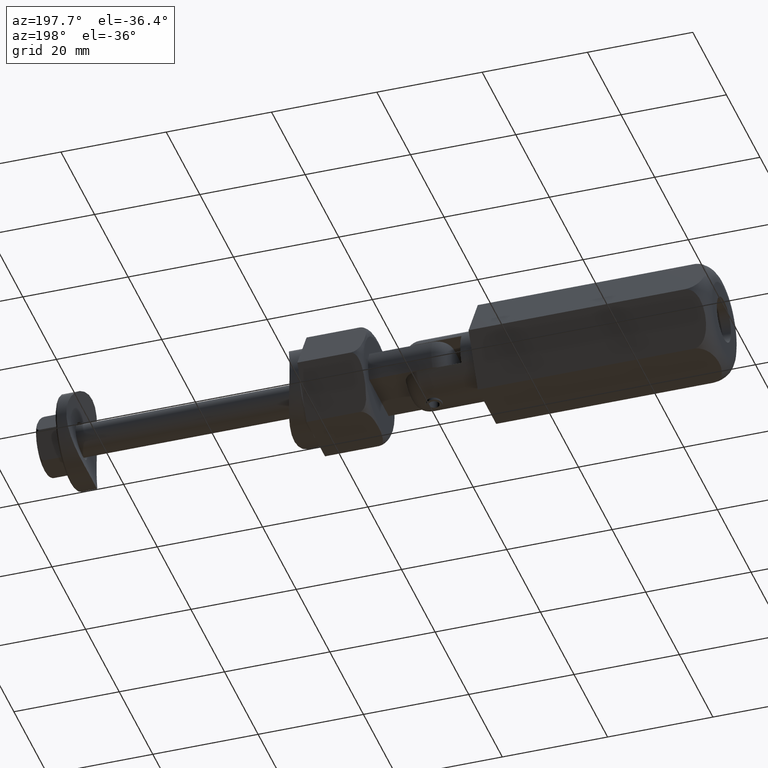
[diagram: clean part render]
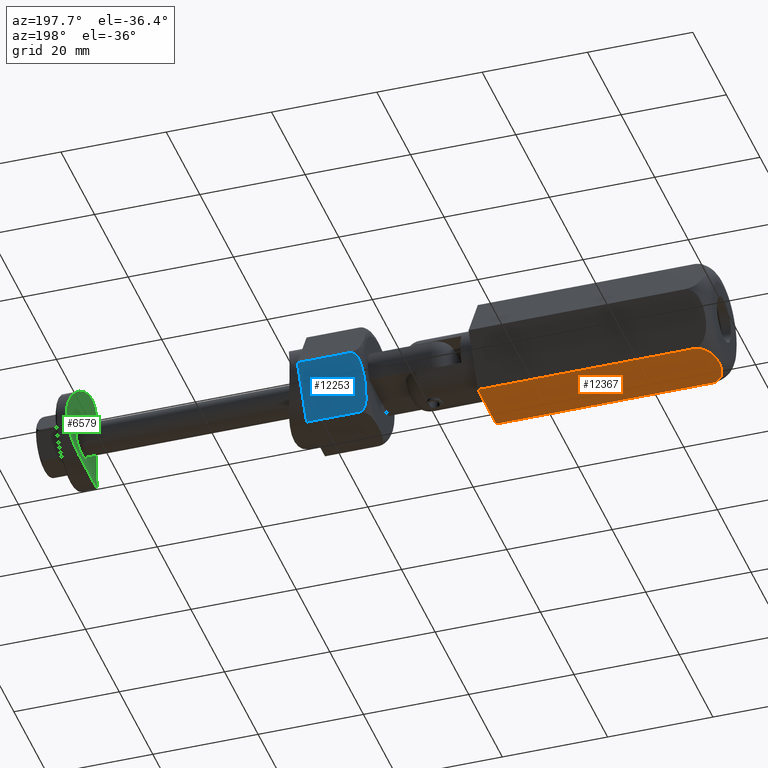
[diagram: same view with three faces highlighted in distinct colors, each labeled with its STEP entity id]
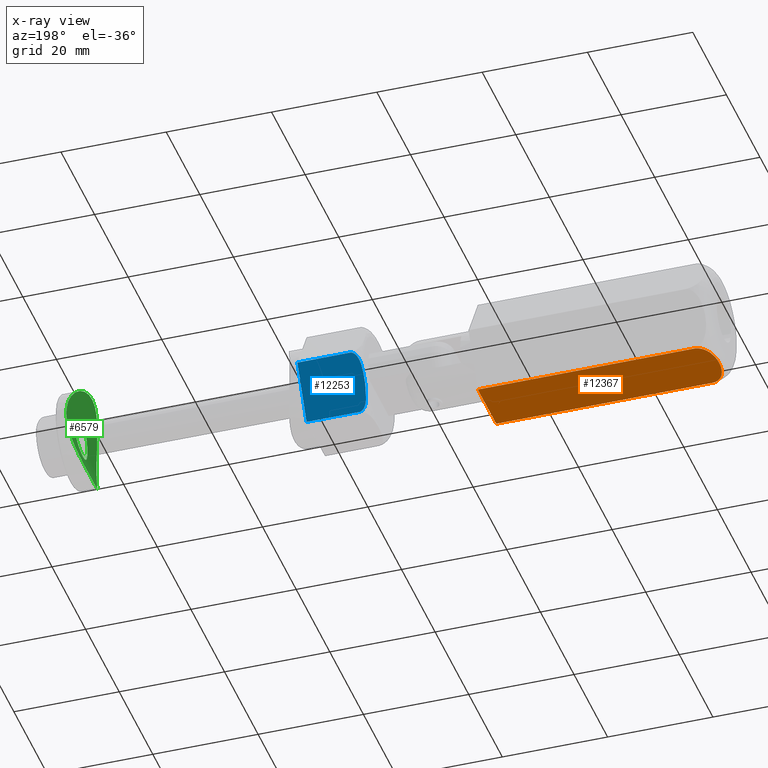
[diagram: x-ray of the same camera — body ghosted, the three highlighted faces saturated]
A machine part, auxiliary view with three faces highlighted in distinct colors.
The next image is the same camera in x-ray (body ghosted, the three faces saturated) — at least one of them is partly hidden behind the body in this view.
Their STEP definitions:

[orange] entity #12367 — the highlighted planar face has unit normal (-0, 0, 1).
#115 = CARTESIAN_POINT ( 'NONE',  ( -7.446822779551734328, 6.670229978221253297, 43.62148147512581886 ) ) ;
#181 = B_SPLINE_CURVE_WITH_KNOTS ( 'NONE', 3,
 ( #8402, #4118, #1488, #17402, #7370, #3016, #14557, #1552, #8758, #16081, #1608, #115, #4304, #10044, #4537, #7208, #13112, #14373, #17278, #10227, #4415, #17457, #7318, #2962, #11483, #10106, #11659, #4471, #12924, #1368, #13166, #2898, #3078, #12988, #14615, #5989 ),
 .UNSPECIFIED., .F., .F.,
 ( 4, 2, 2, 2, 2, 2, 2, 2, 2, 2, 2, 2, 2, 2, 2, 2, 2, 4 ),
 ( 1.970171766495558710E-07, 0.0004336534328667719304, 0.0008671098485568943691, 0.001734022679937157569, 0.002600935511317420661, 0.003467848342697683970, 0.004334761174077946845, 0.005201674005458210154, 0.006935499668218738506, 0.008669325330979266858, 0.009536238162359531034, 0.01040315099373979521, 0.01127006382512006112, 0.01213697665650032703, 0.01257043307219046432, 0.01300388948788060509, 0.01343734590357074238, 0.01387080231926088314 ),
 .UNSPECIFIED. ) ;
#623 = VERTEX_POINT ( 'NONE', #9250 ) ;
#921 = ORIENTED_EDGE ( 'NONE', *, *, #2014, .T. ) ;
#1368 = CARTESIAN_POINT ( 'NONE',  ( -0.2711886533605979976, 10.81308427258397131, 42.10434891476233332 ) ) ;
#1488 = CARTESIAN_POINT ( 'NONE',  ( -9.486123204479945059, 5.492839328930437581, 41.29054539716901218 ) ) ;
#1552 = CARTESIAN_POINT ( 'NONE',  ( -8.749598401841790718, 5.918072121998408264, 42.77482519484067325 ) ) ;
#1608 = CARTESIAN_POINT ( 'NONE',  ( -7.907273331264584648, 6.404388728241327655, 43.40048957431875465 ) ) ;
#2014 = EDGE_CURVE ( 'NONE', #5413, #623, #16359, .T. ) ;
#2898 = CARTESIAN_POINT ( 'NONE',  ( -0.1074483461378910043, 10.90761978303619273, 41.71254742186170716 ) ) ;
#2962 = CARTESIAN_POINT ( 'NONE',  ( -1.593998663515251213, 10.04935955713445139, 43.40131334444888722 ) ) ;
#3016 = CARTESIAN_POINT ( 'NONE',  ( -9.239183155067706821, 5.635410232932287045, 42.11147553663364107 ) ) ;
#3078 = CARTESIAN_POINT ( 'NONE',  ( -0.06728216614628501624, 10.93080973786666377, 41.57272147207822854 ) ) ;
#4118 = CARTESIAN_POINT ( 'NONE',  ( -9.500000000000001776, 5.484827557301439782, 41.14667168911100958 ) ) ;
#4304 = CARTESIAN_POINT ( 'NONE',  ( -7.207038754022406124, 6.808669349907987112, 43.71285843032678287 ) ) ;
#4415 = CARTESIAN_POINT ( 'NONE',  ( -2.778568392603388837, 9.365447905171532028, 43.86274081669363056 ) ) ;
#4471 = CARTESIAN_POINT ( 'NONE',  ( -0.4928356627262582834, 10.68511631206163059, 42.45831529050607145 ) ) ;
#4537 = CARTESIAN_POINT ( 'NONE',  ( -6.480862717753538504, 7.227927279926873005, 43.92029236874594034 ) ) ;
#5413 = VERTEX_POINT ( 'NONE', #18052 ) ;
#5989 = CARTESIAN_POINT ( 'NONE',  ( 1.214306433183764966E-14, 10.96965511460288845, 40.99999999999999289 ) ) ;
#6209 = CARTESIAN_POINT ( 'NONE',  ( 5.223376670782212282E-15, 10.96965511460288845, 45.00000000000000000 ) ) ;
#6242 = LINE ( 'NONE', #18170, #17288 ) ;
#7208 = CARTESIAN_POINT ( 'NONE',  ( -5.746149253409090996, 7.652114296343381028, 44.05675738102539896 ) ) ;
#7318 = CARTESIAN_POINT ( 'NONE',  ( -2.058143797317456336, 9.781385239190695913, 43.62364900213911056 ) ) ;
#7370 = CARTESIAN_POINT ( 'NONE',  ( -9.392357395636430795, 5.546975043907021785, 41.71312555923451981 ) ) ;
#7492 = EDGE_CURVE ( 'NONE', #10354, #5413, #181, .T. ) ;
#7587 = VECTOR ( 'NONE', #9453, 1000.000000000000000 ) ;
#7946 = ORIENTED_EDGE ( 'NONE', *, *, #9465, .T. ) ;
#8402 = CARTESIAN_POINT ( 'NONE',  ( -9.499999999999996447, 5.484827557301445999, 40.99999999999999289 ) ) ;
#8758 = CARTESIAN_POINT ( 'NONE',  ( -8.551860364337809273, 6.032236231180360342, 42.95737215773482376 ) ) ;
#9250 = CARTESIAN_POINT ( 'NONE',  ( 5.223376670782212282E-15, 10.96965511460288845, 0.000000000000000000 ) ) ;
#9453 = DIRECTION ( 'NONE',  ( -0.8660254037844387076, -0.4999999999999999445, 0.000000000000000000 ) ) ;
#9465 = EDGE_CURVE ( 'NONE', #623, #15293, #12113, .T. ) ;
#9812 = EDGE_CURVE ( 'NONE', #10354, #15293, #6242, .T. ) ;
#10044 = CARTESIAN_POINT ( 'NONE',  ( -6.724234168576175286, 7.087416707281349204, 43.86206037955516024 ) ) ;
#10064 = DIRECTION ( 'NONE',  ( 0.4999999999999999445, -0.8660254037844387076, 0.000000000000000000 ) ) ;
#10106 = CARTESIAN_POINT ( 'NONE',  ( -0.9454844053752656796, 10.42377943864488365, 42.95521106891156649 ) ) ;
#10185 = CARTESIAN_POINT ( 'NONE',  ( 5.223376670782212282E-15, 10.96965511460288845, 45.00000000000000000 ) ) ;
#10227 = CARTESIAN_POINT ( 'NONE',  ( -3.021065120984054442, 9.225442353763350312, 43.92069474690411823 ) ) ;
#10354 = VERTEX_POINT ( 'NONE', #15189 ) ;
#11483 = CARTESIAN_POINT ( 'NONE',  ( -1.369769228094275704, 10.17881848203499118, 43.27037286388834758 ) ) ;
#11659 = CARTESIAN_POINT ( 'NONE',  ( -0.7504398242444135780, 10.53638848006475826, 42.77497964306935785 ) ) ;
#11771 = CARTESIAN_POINT ( 'NONE',  ( -9.500000000000000000, 5.484827557301441558, 0.000000000000000000 ) ) ;
#12013 = DIRECTION ( 'NONE',  ( -0.000000000000000000, -0.000000000000000000, -1.000000000000000000 ) ) ;
#12113 = LINE ( 'NONE', #14989, #7587 ) ;
#12314 = VECTOR ( 'NONE', #12013, 1000.000000000000000 ) ;
#12367 = ADVANCED_FACE ( 'NONE', ( #17257 ), #17357, .F. ) ;
#12437 = DIRECTION ( 'NONE',  ( -0.000000000000000000, -0.000000000000000000, -1.000000000000000000 ) ) ;
#12924 = CARTESIAN_POINT ( 'NONE',  ( -0.4124664863858385488, 10.73151747765632003, 42.34401321087241143 ) ) ;
#12941 = DIRECTION ( 'NONE',  ( 0.8660254037844385966, 0.4999999999999998890, 0.000000000000000000 ) ) ;
#12988 = CARTESIAN_POINT ( 'NONE',  ( -0.01389265024196212860, 10.96163418924593103, 41.29056907888804062 ) ) ;
#13112 = CARTESIAN_POINT ( 'NONE',  ( -5.250349426452450174, 7.938364459900964398, 44.09798277058472848 ) ) ;
#13166 = CARTESIAN_POINT ( 'NONE',  ( -0.2096293518114090426, 10.84862555190452227, 41.97842836769322616 ) ) ;
#14373 = CARTESIAN_POINT ( 'NONE',  ( -4.248849028183879994, 8.516580984434845902, 44.09793675888082731 ) ) ;
#14557 = CARTESIAN_POINT ( 'NONE',  ( -9.092082142897089270, 5.720339041907063660, 42.35403578762996801 ) ) ;
#14615 = CARTESIAN_POINT ( 'NONE',  ( 8.261394678886944744E-15, 10.96965511460289200, 41.14676478437783658 ) ) ;
#14989 = CARTESIAN_POINT ( 'NONE',  ( 5.223376670782212282E-15, 10.96965511460288845, 0.000000000000000000 ) ) ;
#15189 = CARTESIAN_POINT ( 'NONE',  ( -9.499999999999996447, 5.484827557301445999, 40.99999999999999289 ) ) ;
#15293 = VERTEX_POINT ( 'NONE', #11771 ) ;
#15666 = AXIS2_PLACEMENT_3D ( 'NONE', #10185, #10064, #12941 ) ;
#16081 = CARTESIAN_POINT ( 'NONE',  ( -8.129533130639849503, 6.276066973241989366, 43.27070080692345755 ) ) ;
#16359 = LINE ( 'NONE', #6209, #12314 ) ;
#17257 = FACE_OUTER_BOUND ( 'NONE', #18599, .T. ) ;
#17278 = CARTESIAN_POINT ( 'NONE',  ( -3.753710454555559295, 8.802449373205321947, 44.05664237914577086 ) ) ;
#17288 = VECTOR ( 'NONE', #12437, 1000.000000000000000 ) ;
#17357 = PLANE ( 'NONE',  #15666 ) ;
#17402 = CARTESIAN_POINT ( 'NONE',  ( -9.432634108725251210, 5.523721272763115309, 41.57310375832806670 ) ) ;
#17457 = CARTESIAN_POINT ( 'NONE',  ( -2.297959558659874890, 9.642927544823729491, 43.71458572105388640 ) ) ;
#18052 = CARTESIAN_POINT ( 'NONE',  ( 1.214306433183764966E-14, 10.96965511460288845, 40.99999999999999289 ) ) ;
#18170 = CARTESIAN_POINT ( 'NONE',  ( -9.500000000000000000, 5.484827557301441558, 45.00000000000000000 ) ) ;
#18388 = ORIENTED_EDGE ( 'NONE', *, *, #7492, .T. ) ;
#18563 = ORIENTED_EDGE ( 'NONE', *, *, #9812, .F. ) ;
#18599 = EDGE_LOOP ( 'NONE', ( #18563, #18388, #921, #7946 ) ) ;

[blue] entity #12253 — the highlighted planar face has unit normal (-0, -0.866, 0.5).
#212 = EDGE_LOOP ( 'NONE', ( #621, #13947, #1211, #15361 ) ) ;
#293 = VERTEX_POINT ( 'NONE', #8743 ) ;
#621 = ORIENTED_EDGE ( 'NONE', *, *, #5821, .F. ) ;
#646 = VERTEX_POINT ( 'NONE', #3509 ) ;
#658 = PLANE ( 'NONE',  #12754 ) ;
#811 = CARTESIAN_POINT ( 'NONE',  ( -3.768767219689602571E-14, 10.96965511460289555, 10.13372363806145593 ) ) ;
#1211 = ORIENTED_EDGE ( 'NONE', *, *, #9696, .T. ) ;
#1382 = CARTESIAN_POINT ( 'NONE',  ( 3.520521459468488000E-15, 10.96965511460291509, 0.000000000000000000 ) ) ;
#2264 = CARTESIAN_POINT ( 'NONE',  ( -9.119513844951647741, 5.704501341341577714, 10.92654201973942030 ) ) ;
#2324 = CARTESIAN_POINT ( 'NONE',  ( -6.563988900393466608, 7.179934356003041529, 11.85829195902210209 ) ) ;
#2447 = CARTESIAN_POINT ( 'NONE',  ( -7.680642201204814334, 6.535234272188128024, 11.66489135380609632 ) ) ;
#2681 = LINE ( 'NONE', #13780, #7213 ) ;
#3509 = CARTESIAN_POINT ( 'NONE',  ( -9.499999999999998224, 5.484827557301456658, 0.000000000000000000 ) ) ;
#3851 = CARTESIAN_POINT ( 'NONE',  ( -1.181243662208773637, 10.28766376824813911, 11.45004439842704791 ) ) ;
#3911 = CARTESIAN_POINT ( 'NONE',  ( -0.1086672379174257741, 10.90691605553919530, 10.51096866074480118 ) ) ;
#3978 = CARTESIAN_POINT ( 'NONE',  ( -5.660899274052090036, 7.701333394873594251, 11.91782240567438578 ) ) ;
#5255 = CARTESIAN_POINT ( 'NONE',  ( 7.806255641895616148E-15, 10.96965511460291509, 10.00000000000000178 ) ) ;
#5374 = CARTESIAN_POINT ( 'NONE',  ( -0.02330133180894536707, 10.95620208441054366, 10.26401890429809427 ) ) ;
#5395 = EDGE_CURVE ( 'NONE', #293, #646, #11712, .T. ) ;
#5444 = CARTESIAN_POINT ( 'NONE',  ( -4.303590513517807636, 8.484975973141496652, 11.92850409199469297 ) ) ;
#5821 = EDGE_CURVE ( 'NONE', #7938, #293, #9874, .T. ) ;
#6179 = EDGE_CURVE ( 'NONE', #7938, #15768, #2681, .T. ) ;
#6636 = CARTESIAN_POINT ( 'NONE',  ( -8.936578034186766217, 5.810119380931103805, 11.08564774292463184 ) ) ;
#6699 = CARTESIAN_POINT ( 'NONE',  ( -0.5732801973703969267, 10.63867163833003282, 11.09352661582058808 ) ) ;
#6762 = CARTESIAN_POINT ( 'NONE',  ( -0.9690206753403729500, 10.41019076684484013, 11.35117518770045564 ) ) ;
#6892 = CARTESIAN_POINT ( 'NONE',  ( -9.334117897262814267, 5.580599633970543927, 10.61818887033518166 ) ) ;
#7213 = VECTOR ( 'NONE', #14126, 1000.000000000000000 ) ;
#7938 = VERTEX_POINT ( 'NONE', #8554 ) ;
#8260 = CARTESIAN_POINT ( 'NONE',  ( -9.477500402085613729, 5.497817706214017441, 10.26022967669228514 ) ) ;
#8271 = LINE ( 'NONE', #9077, #9161 ) ;
#8554 = CARTESIAN_POINT ( 'NONE',  ( 7.806255641895616148E-15, 10.96965511460291509, 10.00000000000000178 ) ) ;
#8743 = CARTESIAN_POINT ( 'NONE',  ( -9.499999999999998224, 5.484827557301462875, 10.00000000000000178 ) ) ;
#9077 = CARTESIAN_POINT ( 'NONE',  ( 3.520521459468488000E-15, 10.96965511460291509, 0.000000000000000000 ) ) ;
#9161 = VECTOR ( 'NONE', #16215, 1000.000000000000114 ) ;
#9211 = DIRECTION ( 'NONE',  ( 2.747217888871383579E-32, 1.690114475855316345E-48, -1.000000000000000000 ) ) ;
#9529 = CARTESIAN_POINT ( 'NONE',  ( -9.499999999999966249, 5.484827557301507284, 10.13272897949966200 ) ) ;
#9649 = CARTESIAN_POINT ( 'NONE',  ( -2.948357487886927863, 9.267420125304152378, 11.85946668466851861 ) ) ;
#9696 = EDGE_CURVE ( 'NONE', #15768, #646, #8271, .T. ) ;
#9874 = B_SPLINE_CURVE_WITH_KNOTS ( 'NONE', 3,
 ( #5255, #811, #5374, #3911, #10927, #18288, #6699, #6762, #3851, #15324, #13805, #15455, #9649, #18220, #5444, #15258, #3978, #2324, #12608, #2447, #10987, #11179, #16892, #6636, #2264, #6892, #18162, #8260, #9529, #12429 ),
 .UNSPECIFIED., .F., .F.,
 ( 4, 2, 2, 2, 2, 2, 2, 2, 2, 2, 2, 2, 2, 2, 4 ),
 ( 1.969591725494962651E-07, 0.0003952753807345900676, 0.0007903538022966306474, 0.001580510645420716252, 0.002370667488544801749, 0.003160824331668886811, 0.004741138017917054769, 0.006321451704165223159, 0.007901765390413390683, 0.009482079076661558206, 0.01027223591978564284, 0.01106239276290972746, 0.01185254960603381036, 0.01224762802759585094, 0.01264270644915789325 ),
 .UNSPECIFIED. ) ;
#10261 = FACE_OUTER_BOUND ( 'NONE', #212, .T. ) ;
#10383 = CARTESIAN_POINT ( 'NONE',  ( 3.520521459468488000E-15, 10.96965511460291509, 12.00000000000000355 ) ) ;
#10835 = DIRECTION ( 'NONE',  ( 0.5000000000000012212, -0.8660254037844379305, -5.392603844284237125E-33 ) ) ;
#10927 = CARTESIAN_POINT ( 'NONE',  ( -0.1697574696399652971, 10.87164559380932971, 10.62487409099793823 ) ) ;
#10987 = CARTESIAN_POINT ( 'NONE',  ( -7.899681610115841579, 6.408771810490208942, 11.60465455900878951 ) ) ;
#11179 = CARTESIAN_POINT ( 'NONE',  ( -8.330015488606980156, 6.160318429901934678, 11.44500298372937586 ) ) ;
#11712 = LINE ( 'NONE', #13489, #15353 ) ;
#12253 = ADVANCED_FACE ( 'NONE', ( #10261 ), #658, .F. ) ;
#12429 = CARTESIAN_POINT ( 'NONE',  ( -9.499999999999998224, 5.484827557301462875, 10.00000000000000178 ) ) ;
#12608 = CARTESIAN_POINT ( 'NONE',  ( -7.016375749902080017, 6.918748686661400527, 11.80944225031882056 ) ) ;
#12754 = AXIS2_PLACEMENT_3D ( 'NONE', #10383, #10835, #15038 ) ;
#13489 = CARTESIAN_POINT ( 'NONE',  ( -9.499999999999998224, 5.484827557301462875, 12.00000000000001066 ) ) ;
#13780 = CARTESIAN_POINT ( 'NONE',  ( 3.520521459468488000E-15, 10.96965511460291509, 12.00000000000000355 ) ) ;
#13805 = CARTESIAN_POINT ( 'NONE',  ( -1.835532337952674675, 9.909910025179675230, 11.66901284663642890 ) ) ;
#13947 = ORIENTED_EDGE ( 'NONE', *, *, #6179, .T. ) ;
#14126 = DIRECTION ( 'NONE',  ( 2.747217888871383579E-32, 1.690114475855316345E-48, -1.000000000000000000 ) ) ;
#15038 = DIRECTION ( 'NONE',  ( 0.8660254037844379305, 0.5000000000000012212, 2.985687800686721840E-33 ) ) ;
#15258 = CARTESIAN_POINT ( 'NONE',  ( -5.208180796922508904, 7.962710529511472402, 11.92829858589938219 ) ) ;
#15324 = CARTESIAN_POINT ( 'NONE',  ( -1.615717051199383913, 10.03682044015868513, 11.60944821489945866 ) ) ;
#15353 = VECTOR ( 'NONE', #9211, 1000.000000000000000 ) ;
#15361 = ORIENTED_EDGE ( 'NONE', *, *, #5395, .F. ) ;
#15455 = CARTESIAN_POINT ( 'NONE',  ( -2.499595801006655016, 9.526512806026463664, 11.81164600213922888 ) ) ;
#15768 = VERTEX_POINT ( 'NONE', #1382 ) ;
#16215 = DIRECTION ( 'NONE',  ( -0.8660254037844379305, -0.5000000000000012212, -2.985687800686721840E-33 ) ) ;
#16892 = CARTESIAN_POINT ( 'NONE',  ( -8.541952905853714029, 6.037956305003182145, 11.34541652004254253 ) ) ;
#18162 = CARTESIAN_POINT ( 'NONE',  ( -9.393484117587998838, 5.546324530685027732, 10.50616458219463034 ) ) ;
#18220 = CARTESIAN_POINT ( 'NONE',  ( -3.850605651059738843, 8.746506905420487143, 11.91821024608993795 ) ) ;
#18288 = CARTESIAN_POINT ( 'NONE',  ( -0.3864712770007608933, 10.74652581879246682, 10.93279771862621175 ) ) ;

[green] entity #6579 — the highlighted cylindrical surface (partial cylindrical patch) has radius 21.2 mm, axis along (0, 1, 0).
#218 = CARTESIAN_POINT ( 'NONE',  ( 3.386984049756484705, 0.9114967044412274344, 2.372257293328037253 ) ) ;
#237 = CARTESIAN_POINT ( 'NONE',  ( 8.883445497185359585, -1.474070503388015485, 4.050882716875977785 ) ) ;
#411 = CARTESIAN_POINT ( 'NONE',  ( -3.500000000000000000, 0.000000000000000000, 2.390911067193770556 ) ) ;
#420 = CARTESIAN_POINT ( 'NONE',  ( 5.955765860730117822, -6.772806331197203988, 2.949163426065100513 ) ) ;
#536 = CARTESIAN_POINT ( 'NONE',  ( -3.319065593604421327, -1.133907466767667627, 2.361240511285288779 ) ) ;
#551 = CARTESIAN_POINT ( 'NONE',  ( 7.639907694094671520, -4.766181298621798845, 3.523707296290869095 ) ) ;
#585 = EDGE_CURVE ( 'NONE', #1774, #1774, #3898, .T. ) ;
#727 = CARTESIAN_POINT ( 'NONE',  ( 3.476902944007814078, 0.4622046229343148571, 2.387008304216344357 ) ) ;
#798 = CARTESIAN_POINT ( 'NONE',  ( 1.132090624845834004, -3.319807017092943457, 2.129182338853568446 ) ) ;
#909 = CARTESIAN_POINT ( 'NONE',  ( -5.946797421235012315, 6.761680869955754680, 2.949814619520471304 ) ) ;
#993 = CARTESIAN_POINT ( 'NONE',  ( -6.767985068317842412, -5.939641931502988470, 3.208390767290667078 ) ) ;
#1120 = CARTESIAN_POINT ( 'NONE',  ( -7.796916004019784019, -4.532705707074540236, 3.582807033181333534 ) ) ;
#1135 = CARTESIAN_POINT ( 'NONE',  ( 8.064130121432256715, 4.006978217306452983, 3.693055384883217052 ) ) ;
#1212 = CARTESIAN_POINT ( 'NONE',  ( 3.321139145130335368, -1.127842110824953226, 2.361570729045106898 ) ) ;
#1369 = CARTESIAN_POINT ( 'NONE',  ( 8.702408039283348273, 2.372073640349042556, 3.968027577799811301 ) ) ;
#1534 = CARTESIAN_POINT ( 'NONE',  ( 3.144959258377305833, 1.552980274944577799, 2.334382246063314348 ) ) ;
#1733 = CARTESIAN_POINT ( 'NONE',  ( 7.316073530914032119, -5.249737311130738604, 3.401632962292483686 ) ) ;
#1774 = VERTEX_POINT ( 'NONE', #411 ) ;
#2118 = CARTESIAN_POINT ( 'NONE',  ( -3.477226063791793109, -0.4604854586558340124, 2.387061447148276727 ) ) ;
#2174 = CARTESIAN_POINT ( 'NONE',  ( -2.783298210497564096, 2.134362886967654749, 2.283109508869928916 ) ) ;
#2175 = CARTESIAN_POINT ( 'NONE',  ( 3.499910295345006972, 0.2299777461154664804, 2.390896051414324930 ) ) ;
#2182 = CARTESIAN_POINT ( 'NONE',  ( 2.316023470696364939, -2.634023451689342377, 2.226263542081074132 ) ) ;
#2251 = CARTESIAN_POINT ( 'NONE',  ( 2.638349240458453870, -2.311094447710475563, 2.264186578598627264 ) ) ;
#2327 = CARTESIAN_POINT ( 'NONE',  ( -8.984718648477102221, -0.6034601397220153984, 4.098023013587533292 ) ) ;
#2358 = CARTESIAN_POINT ( 'NONE',  ( -3.205093018567954477, 8.415055338208812685, 2.341889825580586670 ) ) ;
#2387 = CARTESIAN_POINT ( 'NONE',  ( -0.5856921983027995049, -9.000526453280953021, 2.099776505755873046 ) ) ;
#2574 = CARTESIAN_POINT ( 'NONE',  ( -8.924885096745494906, -1.198231756554555050, 4.070140005998574395 ) ) ;
#2601 = CARTESIAN_POINT ( 'NONE',  ( 1.755190324390375034, 3.036641687054298266, 2.171926716492254883 ) ) ;
#2772 = CARTESIAN_POINT ( 'NONE',  ( 2.349030549496118780, 8.708199343826661831, 2.222486883313150141 ) ) ;
#2795 = CARTESIAN_POINT ( 'NONE',  ( 3.388192740053830754, -0.9074120602962160165, 2.372453070477746895 ) ) ;
#2934 = DIRECTION ( 'NONE',  ( 0.000000000000000000, 0.000000000000000000, 1.000000000000000000 ) ) ;
#3002 = B_SPLINE_CURVE_WITH_KNOTS ( 'NONE', 3,
 ( #10915, #6561, #16636, #8011, #13796, #5177, #15312, #15251, #16698, #18152, #10979, #9520, #11346, #12838, #909, #4322, #14758, #13203, #10643, #2358, #8507, #16011, #16438, #18603, #9799, #14129, #8514, #8403, #15600, #2772, #18485, #4119, #9925, #11429, #5759, #14197, #5576, #17220, #8458, #1135, #11372, #10045, #1369, #3017, #4472, #4416, #18704, #13167, #237, #11546, #4538, #15896, #10169, #17706, #551, #1733, #10474, #16136, #3199, #420, #10543, #3322, #4793, #15521, #8150, #9653, #11048, #9263, #8263, #16959, #13922, #2387, #17907, #11114, #18347, #6764, #12549, #9782, #4044, #12610, #993, #12488, #10991, #1120, #18290, #12672, #16895, #13987, #2574, #2327, #9720, #5378 ),
 .UNSPECIFIED., .T., .F.,
 ( 4, 2, 2, 2, 2, 2, 2, 2, 2, 2, 2, 2, 2, 2, 2, 2, 2, 2, 2, 2, 2, 2, 2, 2, 2, 2, 2, 2, 2, 2, 2, 2, 2, 2, 2, 2, 2, 2, 2, 2, 2, 2, 2, 2, 2, 4 ),
 ( 0.000000000000000000, 0.001779121269481610899, 0.002668681904222417432, 0.003558242538963223098, 0.005337363808444837467, 0.006226924443185643566, 0.007116485077926449666, 0.008006045712667254899, 0.008895606347408060999, 0.01067472761688967146, 0.01156428825163047756, 0.01245384888637128193, 0.01423297015585289066, 0.01512253079059369502, 0.01601209142533449939, 0.01779121269481610812, 0.01957033396429771338, 0.02134945523377932211, 0.02312857650326093431, 0.02401813713800173694, 0.02490769777274254304, 0.02668681904222415177, 0.02846594031170575703, 0.02935550094644655966, 0.03024506158118736576, 0.03202418285066897796, 0.03291374348540978406, 0.03380330412015058322, 0.03469286475489138932, 0.03558242538963219542, 0.03736154665911380762, 0.03825110729385461372, 0.03914066792859541982, 0.04091978919807702508, 0.04180934983281783118, 0.04269891046755863728, 0.04447803173704026336, 0.04625715300652187556, 0.04803627427600348082, 0.04981539554548509302, 0.05070495618022589912, 0.05159451681496670522, 0.05337363808444831048, 0.05515275935392992268, 0.05604231998867072878, 0.05693188062341153488 ),
 .UNSPECIFIED. ) ;
#3017 = CARTESIAN_POINT ( 'NONE',  ( 8.939971974155941581, 1.198140283409450335, 4.076733770865094364 ) ) ;
#3024 = CARTESIAN_POINT ( 'NONE',  ( 2.133974681225372372, 2.783529750205419262, 2.206818025532601979 ) ) ;
#3199 = CARTESIAN_POINT ( 'NONE',  ( 6.575604964608815273, -6.151986061130804373, 3.144396724207855875 ) ) ;
#3267 = CARTESIAN_POINT ( 'NONE',  ( 2.637164923716952103, 2.312677023180730096, 2.264023663331899971 ) ) ;
#3322 = CARTESIAN_POINT ( 'NONE',  ( 4.783214464045443037, -7.629261748838103152, 2.645153529278332361 ) ) ;
#3500 = CARTESIAN_POINT ( 'NONE',  ( -3.477229276685080528, 0.4593523931639140745, 2.387063412337750545 ) ) ;
#3573 = CARTESIAN_POINT ( 'NONE',  ( -0.4560529739544845196, -3.477670549433095726, 2.103720280169794066 ) ) ;
#3647 = CARTESIAN_POINT ( 'NONE',  ( -1.127079799142055583, -3.321472759838139943, 2.128918759278375372 ) ) ;
#3898 = B_SPLINE_CURVE_WITH_KNOTS ( 'NONE', 3,
 ( #14971, #12159, #3500, #13591, #10840, #13782, #12225, #2174, #15041, #6420, #16494, #13652, #5036, #12286, #16554, #7936, #18015, #9821, #5294, #5417, #17118, #14834, #2601, #3024, #13171, #3267, #15522, #10213, #1534, #10268, #218, #727, #2175, #5422, #15493, #2795, #1212, #4082, #15821, #10849, #2251, #2182, #5044, #17956, #9316, #798, #12102, #9181, #15123, #12294, #3573, #4978, #3647, #17832, #4842, #18091, #16503, #16564, #6494, #13725, #7945, #536, #5109, #2118, #7871, #6301 ),
 .UNSPECIFIED., .T., .F.,
 ( 4, 2, 2, 2, 2, 2, 2, 2, 2, 2, 2, 2, 2, 2, 2, 2, 2, 2, 2, 2, 2, 2, 2, 2, 2, 2, 2, 2, 2, 2, 2, 2, 4 ),
 ( 0.000000000000000000, 0.0006849990492943954347, 0.001369998098588790869, 0.002054997147883185979, 0.002739996197177581739, 0.003424995246471976632, 0.004109994295766371958, 0.004794993345060768151, 0.005479992394355163478, 0.006164991443649557937, 0.006849990492943953263, 0.007534989542238349457, 0.008219988591532743916, 0.008904987640827139242, 0.009589986690121536303, 0.01027498573941593336, 0.01095998478871033043, 0.01164498383800472749, 0.01232998288729912108, 0.01301498193659351814, 0.01369998098588791173, 0.01438498003518230706, 0.01506997908447670412, 0.01575497813377110118, 0.01643997718306549824, 0.01712497623235989877, 0.01780997528165429583, 0.01849497433094869289, 0.01917997338024308995, 0.01986497242953748701, 0.02054997147883188754, 0.02123497052812628461, 0.02191996957742068167 ),
 .UNSPECIFIED. ) ;
#4044 = CARTESIAN_POINT ( 'NONE',  ( -5.950024793402118206, -6.777821217551546873, 2.947482170566961379 ) ) ;
#4082 = CARTESIAN_POINT ( 'NONE',  ( 3.146732856218461105, -1.549214439599097881, 2.334651019177073294 ) ) ;
#4119 = CARTESIAN_POINT ( 'NONE',  ( 4.012651566003444081, 8.077845520338662766, 2.475794371760390522 ) ) ;
#4272 = FACE_OUTER_BOUND ( 'NONE', #18439, .T. ) ;
#4322 = CARTESIAN_POINT ( 'NONE',  ( -5.497450429022882723, 7.131813691955863455, 2.823855749445251195 ) ) ;
#4416 = CARTESIAN_POINT ( 'NONE',  ( 9.000400974029087564, -0.2839722160764822645, 4.105397047312537850 ) ) ;
#4472 = CARTESIAN_POINT ( 'NONE',  ( 8.999172276844687346, 0.6052519994996065078, 4.104820939877700248 ) ) ;
#4538 = CARTESIAN_POINT ( 'NONE',  ( 8.536066545482777101, -2.912700169554784946, 3.892880292925777752 ) ) ;
#4685 = EDGE_LOOP ( 'NONE', ( #16018 ) ) ;
#4793 = CARTESIAN_POINT ( 'NONE',  ( 4.532780756239579212, -7.780812614444896802, 2.588547621772299578 ) ) ;
#4842 = CARTESIAN_POINT ( 'NONE',  ( -1.751451033441404181, -3.038880866574763751, 2.171607237727812834 ) ) ;
#4978 = CARTESIAN_POINT ( 'NONE',  ( -0.9041893388819918220, -3.388896340241048133, 2.118104430533367832 ) ) ;
#5036 = CARTESIAN_POINT ( 'NONE',  ( -1.551964471413712188, 3.145367885556102028, 2.155830871819476968 ) ) ;
#5044 = CARTESIAN_POINT ( 'NONE',  ( 2.136284364077222886, -2.781794003270770865, 2.207049254354865209 ) ) ;
#5109 = CARTESIAN_POINT ( 'NONE',  ( -3.386783194588574464, -0.9126048154589467831, 2.372224207840019528 ) ) ;
#5177 = CARTESIAN_POINT ( 'NONE',  ( -8.519085452557785487, 2.917802884023286136, 3.886750800336526535 ) ) ;
#5294 = CARTESIAN_POINT ( 'NONE',  ( 0.4590335899886232585, 3.477316445911413201, 2.103779074841384489 ) ) ;
#5378 = CARTESIAN_POINT ( 'NONE',  ( -9.000000000000000000, 2.710505431213761085E-16, 4.105209039950448613 ) ) ;
#5417 = CARTESIAN_POINT ( 'NONE',  ( 0.9082143567806685303, 3.387858938013993182, 2.118271080315295762 ) ) ;
#5422 = CARTESIAN_POINT ( 'NONE',  ( 3.500089168962008834, -0.2272391878289064526, 2.390925993302861929 ) ) ;
#5576 = CARTESIAN_POINT ( 'NONE',  ( 7.143967367260362522, 5.505046255798359489, 3.336905660156288089 ) ) ;
#5759 = CARTESIAN_POINT ( 'NONE',  ( 5.953767838570621862, 6.774246431175876104, 2.948631012675696272 ) ) ;
#6301 = CARTESIAN_POINT ( 'NONE',  ( -3.500000000000000000, -8.131516293641283255E-17, 2.390911067193771000 ) ) ;
#6420 = CARTESIAN_POINT ( 'NONE',  ( -2.313446218120369213, 2.636264786901057811, 2.225980594803974366 ) ) ;
#6494 = CARTESIAN_POINT ( 'NONE',  ( -2.779188294754456390, -2.139915187423183429, 2.282557432926595187 ) ) ;
#6561 = CARTESIAN_POINT ( 'NONE',  ( -9.000000000000000000, 0.6022301676324366415, 4.105209039950446837 ) ) ;
#6579 = ADVANCED_FACE ( 'NONE', ( #8117, #4272 ), #17555, .F. ) ;
#6764 = CARTESIAN_POINT ( 'NONE',  ( -4.005712576156172489, -8.080867107885593370, 2.474600650052571460 ) ) ;
#7142 = CARTESIAN_POINT ( 'NONE',  ( -9.000000000000000000, 0.000000000000000000, 4.105209039950447725 ) ) ;
#7871 = CARTESIAN_POINT ( 'NONE',  ( -3.500000000000000888, -0.2316520886482962560, 2.390911067193771444 ) ) ;
#7920 = ORIENTED_EDGE ( 'NONE', *, *, #13475, .F. ) ;
#7936 = CARTESIAN_POINT ( 'NONE',  ( -0.4580480389297850174, 3.477540536709195163, 2.103742939931357636 ) ) ;
#7945 = CARTESIAN_POINT ( 'NONE',  ( -3.143987851673773370, -1.554761379237297181, 2.334237773707898089 ) ) ;
#8011 = CARTESIAN_POINT ( 'NONE',  ( -8.765548746403903024, 2.062165950460749908, 3.996910775638059299 ) ) ;
#8117 = FACE_BOUND ( 'NONE', #4685, .T. ) ;
#8150 = CARTESIAN_POINT ( 'NONE',  ( 3.745224452304390717, -8.189008184627281750, 2.431627000577344155 ) ) ;
#8263 = CARTESIAN_POINT ( 'NONE',  ( 1.198462509687661548, -8.924876651340719391, 2.131800132847656126 ) ) ;
#8403 = CARTESIAN_POINT ( 'NONE',  ( 1.183904790595069478, 8.926821845496240471, 2.130979375828014444 ) ) ;
#8458 = CARTESIAN_POINT ( 'NONE',  ( 7.786055058421186281, 4.523650702319240935, 3.580978259992664281 ) ) ;
#8507 = CARTESIAN_POINT ( 'NONE',  ( -2.928297529281808753, 8.515469180634772428, 2.301264842937780664 ) ) ;
#8514 = CARTESIAN_POINT ( 'NONE',  ( 0.5875516269330899322, 8.985797788739249725, 2.106042185908241215 ) ) ;
#9181 = CARTESIAN_POINT ( 'NONE',  ( 0.4626387774401372610, -3.476785928022042782, 2.103866153282410778 ) ) ;
#9257 = VERTEX_POINT ( 'NONE', #7142 ) ;
#9263 = CARTESIAN_POINT ( 'NONE',  ( 1.496328371181379291, -8.879702304195816964, 2.150857130149487872 ) ) ;
#9316 = CARTESIAN_POINT ( 'NONE',  ( 1.556204404468899183, -3.143401925480575176, 2.156126715384310888 ) ) ;
#9520 = CARTESIAN_POINT ( 'NONE',  ( -6.766048313375105039, 5.941849588956706896, 3.207737569877102679 ) ) ;
#9653 = CARTESIAN_POINT ( 'NONE',  ( 2.930983491255338969, -8.529688198176652136, 2.296378237583078796 ) ) ;
#9720 = CARTESIAN_POINT ( 'NONE',  ( -9.000000000000000000, -0.3011150838162178767, 4.105209039950448613 ) ) ;
#9782 = CARTESIAN_POINT ( 'NONE',  ( -5.501311983712250608, -7.146811310810093687, 2.820136018022912250 ) ) ;
#9799 = CARTESIAN_POINT ( 'NONE',  ( -0.6064474908965796773, 8.999256637721661178, 2.100315578128659766 ) ) ;
#9821 = CARTESIAN_POINT ( 'NONE',  ( 0.2266849831836880713, 3.500130494934292180, 2.099978456028448903 ) ) ;
#9925 = CARTESIAN_POINT ( 'NONE',  ( 4.527725506764322283, 7.799994965017359227, 2.583139751377061089 ) ) ;
#10045 = CARTESIAN_POINT ( 'NONE',  ( 8.528391803012052463, 2.933994583505460607, 3.889521855624835656 ) ) ;
#10111 = AXIS2_PLACEMENT_3D ( 'NONE', #17376, #14349, #2934 ) ;
#10169 = CARTESIAN_POINT ( 'NONE',  ( 8.068293523425873914, -3.998611255628535588, 3.694769083929056563 ) ) ;
#10213 = CARTESIAN_POINT ( 'NONE',  ( 3.035149404128160811, 1.757772086340379625, 2.318002089094626239 ) ) ;
#10268 = CARTESIAN_POINT ( 'NONE',  ( 3.320605742135959826, 1.129643296139878128, 2.361483480286096892 ) ) ;
#10474 = CARTESIAN_POINT ( 'NONE',  ( 7.142772226264595403, -5.483223177737663434, 3.338559700049898105 ) ) ;
#10543 = CARTESIAN_POINT ( 'NONE',  ( 5.507888469158012335, -7.141587104885536164, 2.821951802872823656 ) ) ;
#10643 = CARTESIAN_POINT ( 'NONE',  ( -4.015580886328727672, 8.075779872960261230, 2.476572724249879176 ) ) ;
#10840 = CARTESIAN_POINT ( 'NONE',  ( -3.320600948318714440, 1.129692993203106122, 2.361482373378766653 ) ) ;
#10849 = CARTESIAN_POINT ( 'NONE',  ( 2.782822552050209453, -2.135087932694611723, 2.283043207214388914 ) ) ;
#10915 = CARTESIAN_POINT ( 'NONE',  ( -9.000000000000000000, 2.710505431213761085E-16, 4.105209039950448613 ) ) ;
#10979 = CARTESIAN_POINT ( 'NONE',  ( -7.136393349933621622, 5.491527681049625187, 3.336275164817628980 ) ) ;
#10991 = CARTESIAN_POINT ( 'NONE',  ( -7.311472419907169673, -5.256110834363020068, 3.399942953120395739 ) ) ;
#11048 = CARTESIAN_POINT ( 'NONE',  ( 2.369100941744511690, -8.702862009132209309, 2.224698540167216354 ) ) ;
#11114 = CARTESIAN_POINT ( 'NONE',  ( -2.354678229249704380, -8.707229325129514308, 2.222894217259156591 ) ) ;
#11346 = CARTESIAN_POINT ( 'NONE',  ( -6.571030345259964989, 6.156745591378433247, 3.142925159791039924 ) ) ;
#11372 = CARTESIAN_POINT ( 'NONE',  ( 8.189956734736412614, 3.743000991661145527, 3.745470069114856582 ) ) ;
#11429 = CARTESIAN_POINT ( 'NONE',  ( 5.496644906564071675, 7.150322684329964318, 2.818899160525556002 ) ) ;
#11546 = CARTESIAN_POINT ( 'NONE',  ( 8.708359458168319023, -2.349133148422251516, 3.970722831128999264 ) ) ;
#12102 = CARTESIAN_POINT ( 'NONE',  ( 0.9101748762663407488, -3.387278660266522579, 2.118363935215678229 ) ) ;
#12159 = CARTESIAN_POINT ( 'NONE',  ( -3.499999999999999112, 0.2316520886482952846, 2.390911067193770556 ) ) ;
#12225 = CARTESIAN_POINT ( 'NONE',  ( -3.037267722292587457, 1.754211687608835613, 2.318307036184326986 ) ) ;
#12286 = CARTESIAN_POINT ( 'NONE',  ( -1.130995421334589635, 3.320057561690506365, 2.129139573495061111 ) ) ;
#12294 = CARTESIAN_POINT ( 'NONE',  ( -0.2284514707409497636, -3.500185375067812910, 2.099969395635310487 ) ) ;
#12488 = CARTESIAN_POINT ( 'NONE',  ( -7.138145225870883515, -5.489248663871813427, 3.336902390179000477 ) ) ;
#12549 = CARTESIAN_POINT ( 'NONE',  ( -4.531143009220560458, -7.798082359429831634, 2.583870890236030782 ) ) ;
#12610 = CARTESIAN_POINT ( 'NONE',  ( -6.570051494431054628, -6.157908511444627031, 3.142585294229900850 ) ) ;
#12672 = CARTESIAN_POINT ( 'NONE',  ( -8.533054436092360362, -2.922138815264546441, 3.891528669452685829 ) ) ;
#12838 = CARTESIAN_POINT ( 'NONE',  ( -6.161404844027698502, 6.566661741195224167, 3.013965487062178816 ) ) ;
#13167 = CARTESIAN_POINT ( 'NONE',  ( 8.927896380613054461, -1.175557709462171863, 4.071539299863849770 ) ) ;
#13171 = CARTESIAN_POINT ( 'NONE',  ( 2.311144342984660760, 2.638508228965967817, 2.225713509168732784 ) ) ;
#13203 = CARTESIAN_POINT ( 'NONE',  ( -4.529556461873096573, 7.799281068273506534, 2.583449115028530585 ) ) ;
#13475 = EDGE_CURVE ( 'NONE', #9257, #9257, #3002, .T. ) ;
#13591 = CARTESIAN_POINT ( 'NONE',  ( -3.388085022150917780, 0.9071978540637513078, 2.372436356687507075 ) ) ;
#13652 = CARTESIAN_POINT ( 'NONE',  ( -1.755071107980006540, 3.036883176365889891, 2.171900191555174775 ) ) ;
#13725 = CARTESIAN_POINT ( 'NONE',  ( -3.035812752972018913, -1.756976242285883005, 2.318088252811143501 ) ) ;
#13782 = CARTESIAN_POINT ( 'NONE',  ( -3.144792970768488516, 1.553342875179987592, 2.334356956455917231 ) ) ;
#13796 = CARTESIAN_POINT ( 'NONE',  ( -8.693075955343484651, 2.349217114833197506, 3.964036308711037293 ) ) ;
#13922 = CARTESIAN_POINT ( 'NONE',  ( 0.3048979933382157670, -8.999731393797212320, 2.100114030898147632 ) ) ;
#13987 = CARTESIAN_POINT ( 'NONE',  ( -8.880462410946023510, -1.491469006224793503, 4.049506213162338497 ) ) ;
#14129 = CARTESIAN_POINT ( 'NONE',  ( 0.2865226143655731916, 9.000361350476717703, 2.099846596592882086 ) ) ;
#14197 = CARTESIAN_POINT ( 'NONE',  ( 6.775583308319271580, 5.952246384174825877, 3.207288834857337179 ) ) ;
#14349 = DIRECTION ( 'NONE',  ( -0.000000000000000000, 1.000000000000000000, -0.000000000000000000 ) ) ;
#14758 = CARTESIAN_POINT ( 'NONE',  ( -5.261681691625369695, 7.307607166974761093, 2.761796661982786727 ) ) ;
#14834 = CARTESIAN_POINT ( 'NONE',  ( 1.550818453994531110, 3.146055797144051702, 2.155730404485694418 ) ) ;
#14971 = CARTESIAN_POINT ( 'NONE',  ( -3.500000000000000000, -8.131516293641283255E-17, 2.390911067193771000 ) ) ;
#15041 = CARTESIAN_POINT ( 'NONE',  ( -2.635741645386204368, 2.314042222943813343, 2.263859829486521313 ) ) ;
#15123 = CARTESIAN_POINT ( 'NONE',  ( 0.2340966869037648945, -3.499812348612850066, 2.100030980172074901 ) ) ;
#15251 = CARTESIAN_POINT ( 'NONE',  ( -8.077715715060879376, 4.012037878863901064, 3.697672808785787968 ) ) ;
#15312 = CARTESIAN_POINT ( 'NONE',  ( -8.417805771125099312, 3.197972917069190402, 3.842463500720283420 ) ) ;
#15493 = CARTESIAN_POINT ( 'NONE',  ( 3.477997714786525307, -0.4547291357107196563, 2.387190470263222064 ) ) ;
#15521 = CARTESIAN_POINT ( 'NONE',  ( 4.013155420945840213, -8.061124604704584584, 2.481620030197768667 ) ) ;
#15522 = CARTESIAN_POINT ( 'NONE',  ( 2.781691936470198634, 2.136371827064198481, 2.282898434627250506 ) ) ;
#15600 = CARTESIAN_POINT ( 'NONE',  ( 1.478072324521910952, 8.882734505041486983, 2.149582081430981173 ) ) ;
#15821 = CARTESIAN_POINT ( 'NONE',  ( 3.037866316434117309, -1.753302620773837361, 2.318390375629150402 ) ) ;
#15896 = CARTESIAN_POINT ( 'NONE',  ( 8.195999223167362402, -3.729967871242137356, 3.747998092720924657 ) ) ;
#16011 = CARTESIAN_POINT ( 'NONE',  ( -2.360735361079835393, 8.689940755913463377, 2.229909037420221285 ) ) ;
#16018 = ORIENTED_EDGE ( 'NONE', *, *, #585, .T. ) ;
#16136 = CARTESIAN_POINT ( 'NONE',  ( 6.773075127230494097, -5.933833905163506728, 3.210108331659413228 ) ) ;
#16438 = CARTESIAN_POINT ( 'NONE',  ( -2.069273427123894837, 8.763926665609220734, 2.199204624531772900 ) ) ;
#16494 = CARTESIAN_POINT ( 'NONE',  ( -2.137512234397016986, 2.781002601358620652, 2.207159566396101447 ) ) ;
#16503 = CARTESIAN_POINT ( 'NONE',  ( -2.311839137334110283, -2.637664469096317355, 2.225804067002453479 ) ) ;
#16554 = CARTESIAN_POINT ( 'NONE',  ( -0.9100132660212730817, 3.387472811121648775, 2.118333464570299363 ) ) ;
#16564 = CARTESIAN_POINT ( 'NONE',  ( -2.634181019568260673, -2.315807505944566635, 2.263664178963428864 ) ) ;
#16636 = CARTESIAN_POINT ( 'NONE',  ( -8.940179620051695863, 1.192762043537304750, 4.076847759062592225 ) ) ;
#16698 = CARTESIAN_POINT ( 'NONE',  ( -7.801320390038438468, 4.525699097909324564, 3.584505830987002373 ) ) ;
#16895 = CARTESIAN_POINT ( 'NONE',  ( -8.705287611884930499, -2.359308650723932921, 3.969338804076948612 ) ) ;
#16959 = CARTESIAN_POINT ( 'NONE',  ( 0.6023502318451280368, -8.984815514353620358, 2.106459186793928406 ) ) ;
#17118 = CARTESIAN_POINT ( 'NONE',  ( 1.126580436386506401, 3.321674498855188506, 2.128887815577758857 ) ) ;
#17220 = CARTESIAN_POINT ( 'NONE',  ( 7.633095921920673987, 4.777164185214711090, 3.521066813696617892 ) ) ;
#17376 = CARTESIAN_POINT ( 'NONE',  ( 0.000000000000000000, -9.000000000000000000, 23.30000000000000071 ) ) ;
#17555 = CYLINDRICAL_SURFACE ( 'NONE', #10111, 21.19999999999999574 ) ;
#17706 = CARTESIAN_POINT ( 'NONE',  ( 7.790441516584821535, -4.516112634829505978, 3.582711630924209079 ) ) ;
#17832 = CARTESIAN_POINT ( 'NONE',  ( -1.550448968162864372, -3.146203770435664904, 2.155707678619462442 ) ) ;
#17907 = CARTESIAN_POINT ( 'NONE',  ( -1.177433114945624526, -8.942818534641482131, 2.124482320378104472 ) ) ;
#17956 = CARTESIAN_POINT ( 'NONE',  ( 1.756936801351070443, -3.035664974415376083, 2.172069312910204442 ) ) ;
#18015 = CARTESIAN_POINT ( 'NONE',  ( -0.2306968966090028050, 3.499868355390663321, 2.100021733776378241 ) ) ;
#18091 = CARTESIAN_POINT ( 'NONE',  ( -2.132264311149690172, -2.784928464283146443, 2.206635869383564152 ) ) ;
#18152 = CARTESIAN_POINT ( 'NONE',  ( -7.312433258681627635, 5.254898464817233439, 3.400285243842550820 ) ) ;
#18290 = CARTESIAN_POINT ( 'NONE',  ( -8.075678375321286850, -4.016880884885595471, 3.696806480158376207 ) ) ;
#18347 = CARTESIAN_POINT ( 'NONE',  ( -2.919603497746500409, -8.533584350906092908, 2.294788581318373932 ) ) ;
#18439 = EDGE_LOOP ( 'NONE', ( #7920 ) ) ;
#18485 = CARTESIAN_POINT ( 'NONE',  ( 2.915995473697132745, 8.535217117214010329, 2.294146457838617703 ) ) ;
#18603 = CARTESIAN_POINT ( 'NONE',  ( -1.195367113660793734, 8.940039705118071112, 2.125653978507204833 ) ) ;
#18704 = CARTESIAN_POINT ( 'NONE',  ( 8.986205239822112389, -0.5808486025061201374, 4.098720092987608865 ) ) ;